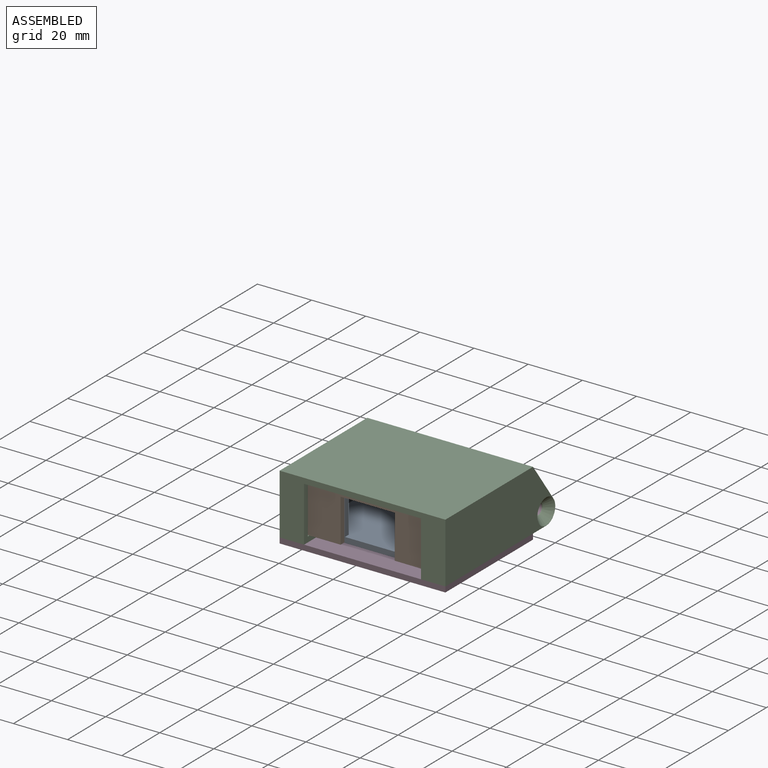
[diagram: assembled view]
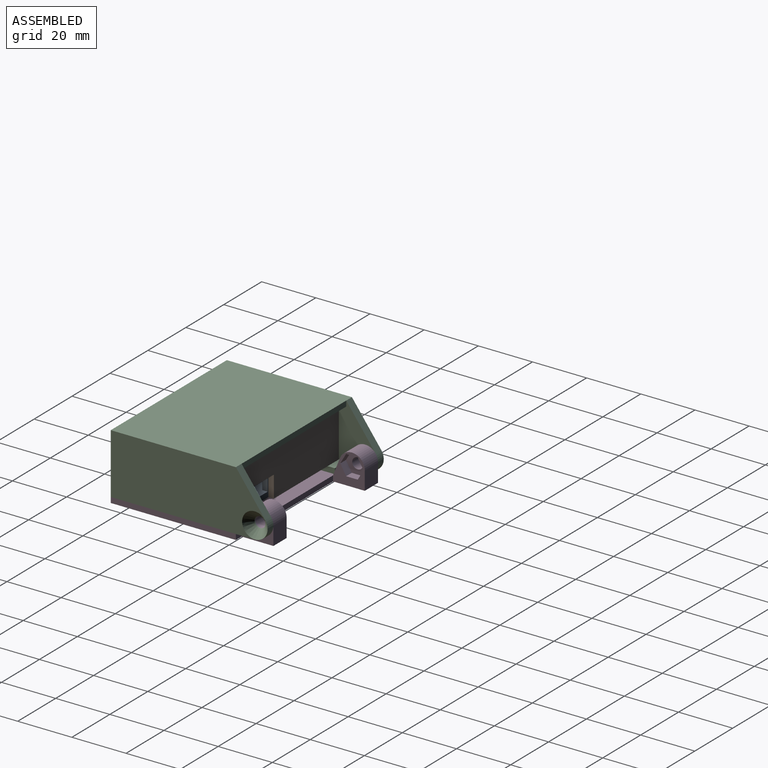
[diagram: assembled view, second angle]
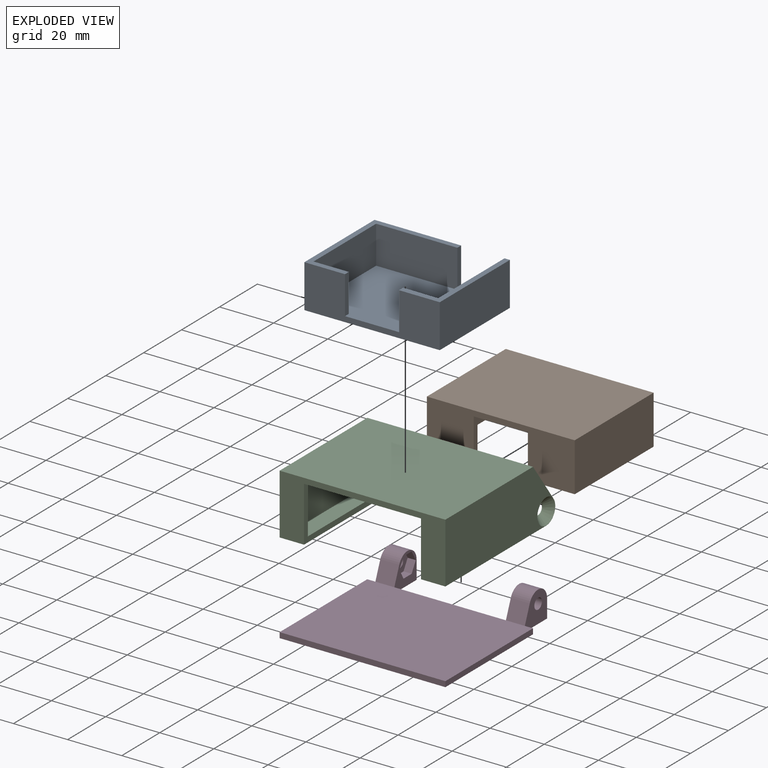
[diagram: exploded view]
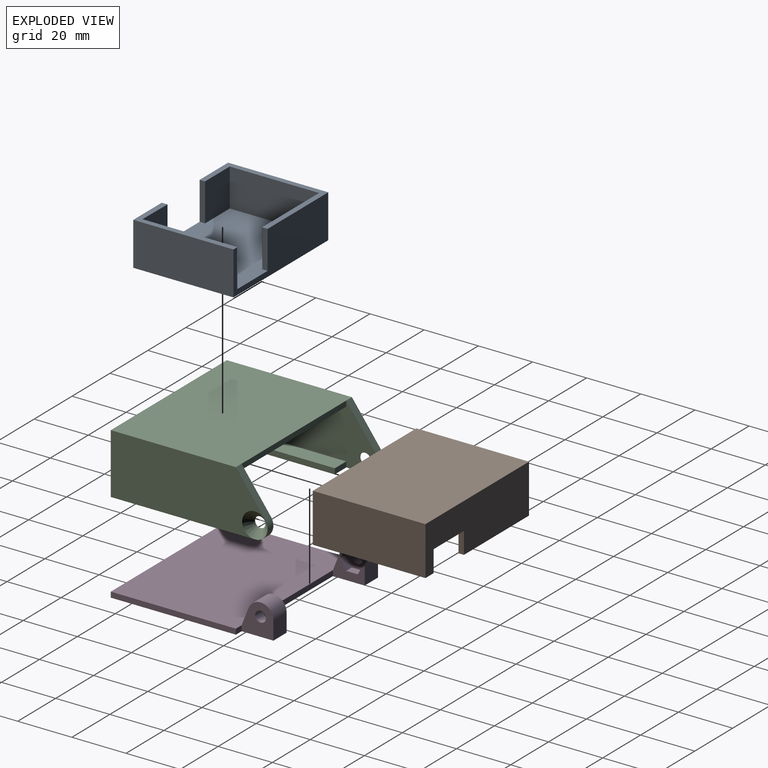
[diagram: exploded view, second angle]
ASSEMBLY  parts=4 mates=3
PART A: 16 faces, bbox 50x37x16 mm
  f0: plane 46x37mm, normal (0,0,1), area 1589.2mm2, adj f1,f3,f6,f7,f8,f9,f10,f12
  f1: plane 50x16mm, normal (0,1,0), area 576mm2, adj f0,f2,f4,f5,f10,f11,f14,f15
  f2: plane 37x16mm, normal (-1,0,0), area 592mm2, adj f1,f3,f5,f11
  f3: plane 50x16mm, normal (0,-1,0), area 520mm2, adj f0,f2,f4,f5,f6,f11,f13,f15
  f4: plane 37x16mm, normal (1,0,0), area 592mm2, adj f1,f3,f5,f15
  f5: plane 50x37mm, normal (0,0,-1), area 1850mm2, adj f1,f2,f3,f4
  f6: plane 14x2mm, normal (1,0,0), area 28mm2, adj f0,f3,f7,f11
  f7: plane 14x13mm, normal (0,1,0), area 182mm2, adj f0,f6,f8,f11
  f8: plane 33x14mm, normal (1,0,0), area 462mm2, adj f0,f7,f9,f11
  f9: plane 30x14mm, normal (0,-1,0), area 420mm2, adj f0,f8,f10,f11
  f10: plane 14x2mm, normal (1,0,0), area 28mm2, adj f0,f1,f9,f11
  f11: plane 37x32mm, normal (0,0,1), area 160mm2, adj f1,f2,f3,f6,f7,f8,f9,f10
  f12: plane 14x13mm, normal (0.01,1,0), area 182mm2, adj f0,f13,f14,f15
  f13: plane 14x2.13mm, normal (-1,0,0), area 29.8mm2, adj f0,f3,f12,f15
  f14: plane 35x14mm, normal (-1,0,0), area 490mm2, adj f0,f1,f12,f15
  f15: plane 37x15mm, normal (0,0,1), area 100.8mm2, adj f1,f3,f4,f12,f13,f14
PART B: 18 faces, bbox 54.6x41.6x18 mm
  f0: plane 8x2mm, normal (1,0,0), area 16mm2, adj f7,f8,f10,f17
  f1: plane 50.6x39.6mm, normal (0,0,-1), area 1942.6mm2, adj f3,f4,f5,f6,f7,f11,f12,f13
  f2: plane 8x2mm, normal (-1,0,0), area 16mm2, adj f7,f8,f15,f17
  f3: plane 54.6x18mm, normal (0,-1,0), area 662.8mm2, adj f1,f4,f9,f10,f13,f14,f15,f16
  f4: plane 16x2mm, normal (1,0,0), area 32mm2, adj f1,f3,f5,f10
  f5: plane 16x15.3mm, normal (0,1,0), area 244.8mm2, adj f1,f4,f6,f10
  f6: plane 37.6x16mm, normal (1,0,0), area 601.6mm2, adj f1,f5,f7,f10
  f7: plane 50.6x16mm, normal (0,-1,0), area 681.6mm2, adj f0,f1,f2,f6,f10,f11,f15,f17
  f8: plane 54.6x18mm, normal (0,1,0), area 854.8mm2, adj f0,f2,f9,f10,f14,f15,f16,f17
  f9: plane 41.6x18mm, normal (-1,0,0), area 748.8mm2, adj f3,f8,f10,f16
  f10: plane 41.6x34.3mm, normal (0,0,-1), area 178.4mm2, adj f0,f3,f4,f5,f6,f7,f8,f9
  f11: plane 37.6x16mm, normal (-1,0,0), area 601.6mm2, adj f1,f7,f12,f15
  f12: plane 16x15.3mm, normal (0,1,0), area 244.8mm2, adj f1,f11,f13,f15
  f13: plane 16x2mm, normal (-1,0,0), area 32mm2, adj f1,f3,f12,f15
  f14: plane 41.6x18mm, normal (1,0,0), area 748.8mm2, adj f3,f8,f15,f16
  f15: plane 41.6x17.3mm, normal (0,0,-1), area 118.4mm2, adj f2,f3,f7,f8,f11,f12,f13,f14
  f16: plane 54.6x41.6mm, normal (0,0,1), area 2271.4mm2, adj f3,f8,f9,f14
  f17: plane 16x2mm, normal (0,0,-1), area 32mm2, adj f0,f2,f7,f8
PART C: 26 faces, bbox 61.2x57.9x22.3 mm
  f0: plane 55.2x2mm, normal (0,1,0), area 110.4mm2, adj f2,f4,f9,f15
  f1: plane 6x2mm, normal (0,1,0), area 12mm2, adj f12,f14,f15,f16
  f2: plane 55.94x22.3mm, normal (1,0,0), area 959.2mm2, adj f0,f3,f4,f5,f10,f17,f18,f19
  f3: plane 18.3x6mm, normal (0,1,0), area 109.8mm2, adj f2,f4,f11,f17
  f4: plane 55.2x46.2mm, normal (0,0,-1), area 2526.2mm2, adj f0,f2,f3,f7,f11,f13,f14,f15
  f5: plane 6x2mm, normal (0,1,0), area 12mm2, adj f2,f10,f11,f17
  f6: plane 57.94x22.3mm, normal (-1,0,0), area 1123.7mm2, adj f7,f9,f10,f18,f19,f21
  f7: plane 61.2x22.3mm, normal (0,-1,0), area 487.8mm2, adj f4,f6,f8,f9,f10,f11,f12,f14
  f8: plane 57.94x22.3mm, normal (1,0,0), area 1123.7mm2, adj f7,f9,f12,f22,f23,f25
  f9: plane 61.2x46.2mm, normal (0,0,1), area 2827.4mm2, adj f0,f6,f7,f8,f18,f23
  f10: plane 53.2x9mm, normal (0,0,-1), area 436.8mm2, adj f2,f5,f6,f7,f11,f19
  f11: plane 46.2x20.3mm, normal (1,0,0), area 129mm2, adj f3,f4,f5,f7,f10,f17
  f12: plane 53.2x9mm, normal (0,0,-1), area 436.8mm2, adj f1,f7,f8,f14,f15,f22
  f13: plane 18.3x6mm, normal (0,1,0), area 109.8mm2, adj f4,f14,f15,f16
  f14: plane 46.2x20.3mm, normal (-1,0,0), area 129mm2, adj f1,f4,f7,f12,f13,f16
  f15: plane 55.94x22.3mm, normal (-1,0,0), area 959.2mm2, adj f0,f1,f4,f12,f13,f16,f22,f23
  f16: plane 44.2x6mm, normal (0,0,1), area 265.2mm2, adj f1,f13,f14,f15
  f17: plane 44.2x6mm, normal (0,0,1), area 265.2mm2, adj f2,f3,f5,f11
  f18: plane 14.74x10.82mm, normal (0,0.81,0.59), area 54.9mm2, adj f2,f6,f9,f19
  f19: cylinder r=4.75mm len=7.56mm, axis (-1,0,0), area 31.4mm2, adj f2,f6,f10,f18
  f20: cylinder r=2mm len=4mm, axis (-1,0,0), area 3.8mm2, adj f2,f21
  f21: cone r=2mm half-angle=45deg, axis (-1,0,0), area 80.4mm2, adj f6,f20
  f22: cylinder r=4.75mm len=7.56mm, axis (1,0,0), area 31.4mm2, adj f8,f12,f15,f23
  f23: plane 14.74x10.82mm, normal (0,0.81,0.59), area 54.9mm2, adj f8,f9,f15,f22
  f24: cylinder r=2mm len=4mm, axis (1,0,0), area 3.8mm2, adj f15,f25
  f25: cone r=2mm half-angle=45deg, axis (1,0,0), area 80.4mm2, adj f8,f24
PART D: 34 faces, bbox 61.2x57.9x11.5 mm
  f0: cylinder r=2mm len=4mm, axis (1,0,0), area 50.3mm2, adj f26,f33
  f1: plane 41.2x2mm, normal (0,1,0), area 82.4mm2, adj f3,f9,f10,f25
  f2: cylinder r=2mm len=4mm, axis (-1,0,0), area 50.3mm2, adj f14,f21
  f3: plane 11.74x11.49mm, normal (1,0,0), area 62.3mm2, adj f1,f9,f11,f12,f13,f15,f16,f17
  f4: plane 3x2mm, normal (0,1,0), area 6mm2, adj f8,f9,f10,f14
  f5: plane 3x2mm, normal (0,1,0), area 6mm2, adj f6,f9,f10,f26
  f6: plane 46.2x2mm, normal (1,0,0), area 92.4mm2, adj f5,f7,f9,f10
  f7: plane 61.2x2mm, normal (0,-1,0), area 122.4mm2, adj f6,f8,f9,f10
  f8: plane 46.2x2mm, normal (-1,0,0), area 92.4mm2, adj f4,f7,f9,f10
  f9: plane 61.2x57.94mm, normal (0,0,-1), area 2991.8mm2, adj f1,f3,f4,f5,f6,f7,f8,f12
  f10: plane 61.2x46.2mm, normal (0,0,1), area 2827.4mm2, adj f1,f4,f5,f6,f7,f8,f11,f22
  f11: plane 7x6.5mm, normal (0,-0.93,0.37), area 49mm2, adj f3,f10,f13,f14
  f12: plane 7x6.75mm, normal (0,1,0), area 47.2mm2, adj f3,f9,f13,f14
  f13: cylinder r=4.75mm len=9.16mm, axis (-1,0,0), area 91.8mm2, adj f3,f11,f12,f14
  f14: plane 11.74x11.49mm, normal (-1,0,0), area 97.8mm2, adj f2,f4,f9,f11,f12,f13
  f15: plane 3.72x3mm, normal (0,-0.87,-0.5), area 12.9mm2, adj f3,f16,f20,f21
  f16: plane 4.3x3mm, normal (0,0,-1), area 12.9mm2, adj f3,f15,f17,f21
  f17: plane 3.72x3mm, normal (0,0.87,-0.5), area 12.9mm2, adj f3,f16,f18,f21
  f18: plane 3.72x3mm, normal (0,0.87,0.5), area 12.9mm2, adj f3,f17,f19,f21
  f19: plane 4.3x3mm, normal (0,0,1), area 12.9mm2, adj f3,f18,f20,f21
  f20: plane 3.72x3mm, normal (0,-0.87,0.5), area 12.9mm2, adj f3,f15,f19,f21
  f21: plane 8.6x7.45mm, normal (1,0,0), area 35.5mm2, adj f2,f15,f16,f17,f18,f19,f20
  f22: plane 7x6.5mm, normal (0,-0.93,0.37), area 49mm2, adj f10,f23,f25,f26
  f23: cylinder r=4.75mm len=9.16mm, axis (1,0,0), area 91.8mm2, adj f22,f24,f25,f26
  f24: plane 7x6.75mm, normal (0,1,0), area 47.2mm2, adj f9,f23,f25,f26
  f25: plane 11.74x11.49mm, normal (-1,0,0), area 62.3mm2, adj f1,f9,f22,f23,f24,f27,f28,f29
  f26: plane 11.74x11.49mm, normal (1,0,0), area 97.8mm2, adj f0,f5,f9,f22,f23,f24
  f27: plane 3.72x3mm, normal (0,-0.87,-0.5), area 12.9mm2, adj f25,f28,f32,f33
  f28: plane 3.72x3mm, normal (0,-0.87,0.5), area 12.9mm2, adj f25,f27,f29,f33
  f29: plane 4.3x3mm, normal (0,0,1), area 12.9mm2, adj f25,f28,f30,f33
  f30: plane 3.72x3mm, normal (0,0.87,0.5), area 12.9mm2, adj f25,f29,f31,f33
  f31: plane 3.72x3mm, normal (0,0.87,-0.5), area 12.9mm2, adj f25,f30,f32,f33
  f32: plane 4.3x3mm, normal (0,0,-1), area 12.9mm2, adj f25,f27,f31,f33
  f33: plane 8.6x7.45mm, normal (-1,0,0), area 35.5mm2, adj f0,f27,f28,f29,f30,f31,f32
PLACE A t=(3.42,-2.95,-39.73)mm
PLACE B t=(3.42,-2.95,-39.43)mm
PLACE C t=(3.12,-2.95,-39.43)mm
PLACE D t=(3.12,-2.95,-39.43)mm
MATE slider B.f1 <-> A.f11  axis (0,0,-1) through (-6.58,-21.75,-23.43)mm
MATE slider B.f8 <-> C.f0  axis (0,-1,0) through (30.72,17.85,-21.43)mm
MATE revolute C.f24 <-> D.f0  axis (-1,0,0) through (30.72,27.15,-36.98)mm
